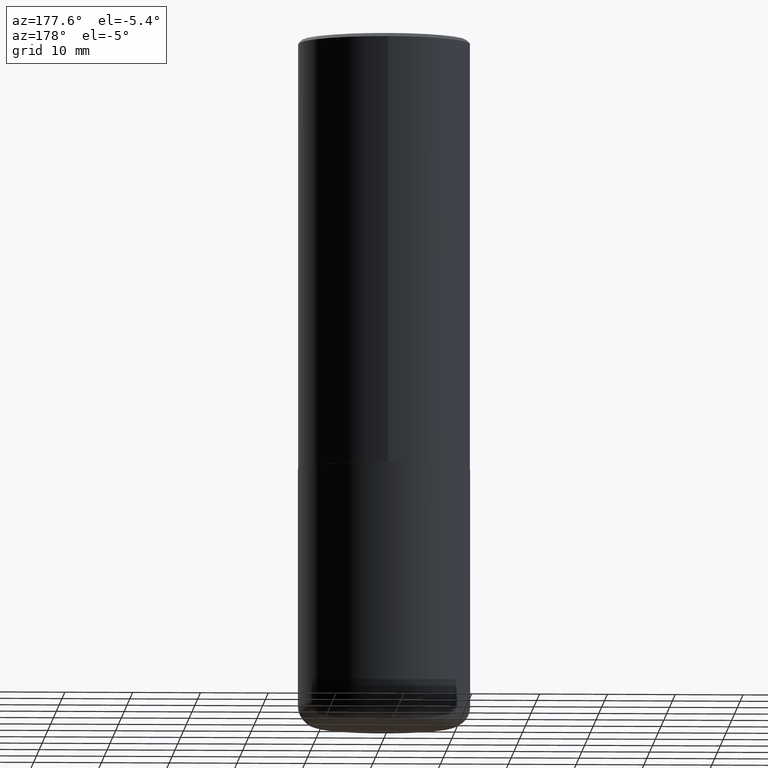
[diagram: clean part render]
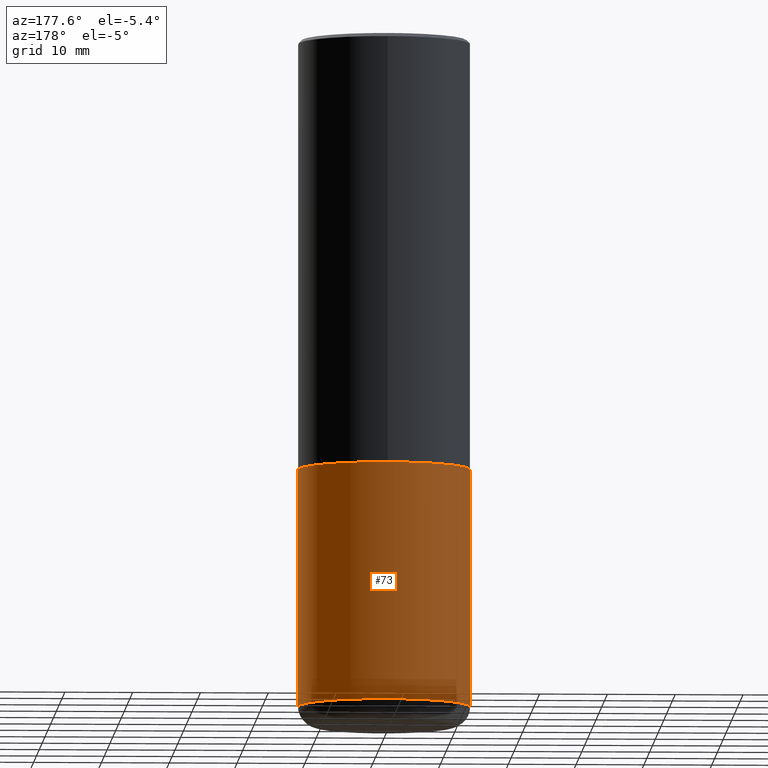
[diagram: same view with one face highlighted and labeled with its STEP entity id]
A machine part, auxiliary view. The second image highlights one B-rep face of the part: STEP entity #73.
In plain terms, the highlighted cylindrical surface (partial cylindrical patch) has radius 12.7 mm, axis along (-0, 0, 1).
Its self-contained STEP definition (entity closure, byte-faithful):
#2 = VERTEX_POINT ( 'NONE', #154 ) ;
#3 = EDGE_CURVE ( 'NONE', #106, #397, #16, .T. ) ;
#16 = LINE ( 'NONE', #111, #394 ) ;
#19 = DIRECTION ( 'NONE',  ( -2.445468806185136597E-29, 3.491481338843145583E-15, 1.000000000000000000 ) ) ;
#23 = EDGE_CURVE ( 'NONE', #257, #2, #77, .T. ) ;
#36 = ORIENTED_EDGE ( 'NONE', *, *, #155, .T. ) ;
#53 = DIRECTION ( 'NONE',  ( 1.000000000000000000, -6.982962677686266711E-15, 4.876176775795935793E-29 ) ) ;
#73 = ADVANCED_FACE ( 'NONE', ( #398 ), #110, .T. ) ;
#77 = LINE ( 'NONE', #178, #164 ) ;
#83 = CARTESIAN_POINT ( 'NONE',  ( -0.5000000000000000000, -7.585111792109135179E-15, -2.500000000000000000 ) ) ;
#84 = ORIENTED_EDGE ( 'NONE', *, *, #23, .F. ) ;
#93 = AXIS2_PLACEMENT_3D ( 'NONE', #281, #130, #410 ) ;
#106 = VERTEX_POINT ( 'NONE', #400 ) ;
#110 = CYLINDRICAL_SURFACE ( 'NONE', #335, 0.5000000000000000000 ) ;
#111 = CARTESIAN_POINT ( 'NONE',  ( -0.5000000000000000000, 3.552713678800500929E-15, -2.459467545127452891E-29 ) ) ;
#114 = CIRCLE ( 'NONE', #93, 0.5000000000000001110 ) ;
#130 = DIRECTION ( 'NONE',  ( -2.445468806185136597E-29, 3.491481338843145583E-15, 1.000000000000000000 ) ) ;
#147 = CARTESIAN_POINT ( 'NONE',  ( 0.000000000000000000, 0.000000000000000000, 0.000000000000000000 ) ) ;
#148 = CIRCLE ( 'NONE', #389, 0.5000000000000000000 ) ;
#154 = CARTESIAN_POINT ( 'NONE',  ( 0.5000000000000000000, -1.222018468595099830E-14, -2.500000000000000000 ) ) ;
#155 = EDGE_CURVE ( 'NONE', #257, #106, #114, .T. ) ;
#164 = VECTOR ( 'NONE', #246, 39.37007874015748143 ) ;
#178 = CARTESIAN_POINT ( 'NONE',  ( 0.5000000000000000000, -3.491481338843133355E-15, 2.438088387897967896E-29 ) ) ;
#217 = CARTESIAN_POINT ( 'NONE',  ( 6.113672015462842613E-29, -8.728703347107864943E-15, -2.500000000000000000 ) ) ;
#232 = EDGE_LOOP ( 'NONE', ( #36, #329, #392, #84 ) ) ;
#243 = EDGE_CURVE ( 'NONE', #2, #397, #148, .T. ) ;
#246 = DIRECTION ( 'NONE',  ( -2.445468806185136877E-29, 3.491481338843145188E-15, 1.000000000000000000 ) ) ;
#257 = VERTEX_POINT ( 'NONE', #351 ) ;
#281 = CARTESIAN_POINT ( 'NONE',  ( 9.488418967998330085E-29, -1.354694759471140570E-14, -3.880000000000000338 ) ) ;
#313 = DIRECTION ( 'NONE',  ( -2.445468806185136877E-29, 3.491481338843145188E-15, 1.000000000000000000 ) ) ;
#329 = ORIENTED_EDGE ( 'NONE', *, *, #3, .T. ) ;
#335 = AXIS2_PLACEMENT_3D ( 'NONE', #147, #19, #53 ) ;
#349 = DIRECTION ( 'NONE',  ( -2.445468806185136597E-29, 3.491481338843145583E-15, 1.000000000000000000 ) ) ;
#351 = CARTESIAN_POINT ( 'NONE',  ( 0.5000000000000001110, -1.703842893355454063E-14, -3.880000000000000338 ) ) ;
#380 = DIRECTION ( 'NONE',  ( 1.000000000000000000, -6.982962677686269077E-15, 0.000000000000000000 ) ) ;
#389 = AXIS2_PLACEMENT_3D ( 'NONE', #217, #349, #380 ) ;
#392 = ORIENTED_EDGE ( 'NONE', *, *, #243, .F. ) ;
#394 = VECTOR ( 'NONE', #313, 39.37007874015748143 ) ;
#397 = VERTEX_POINT ( 'NONE', #83 ) ;
#398 = FACE_OUTER_BOUND ( 'NONE', #232, .T. ) ;
#400 = CARTESIAN_POINT ( 'NONE',  ( -0.5000000000000001110, -9.994233915910901612E-15, -3.880000000000000338 ) ) ;
#410 = DIRECTION ( 'NONE',  ( 1.000000000000000000, -6.982962677686265133E-15, 0.000000000000000000 ) ) ;